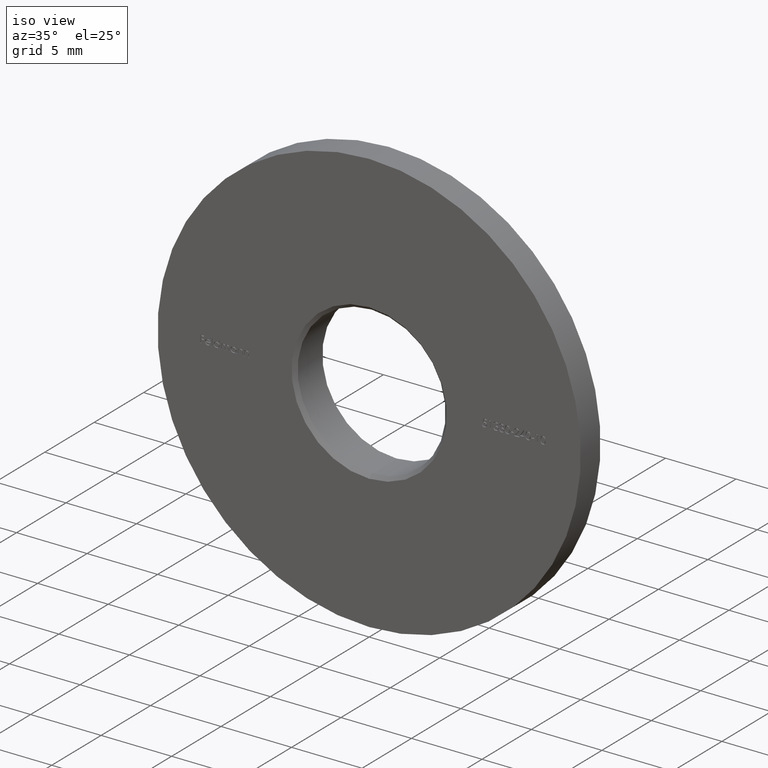
[diagram: clean part render]
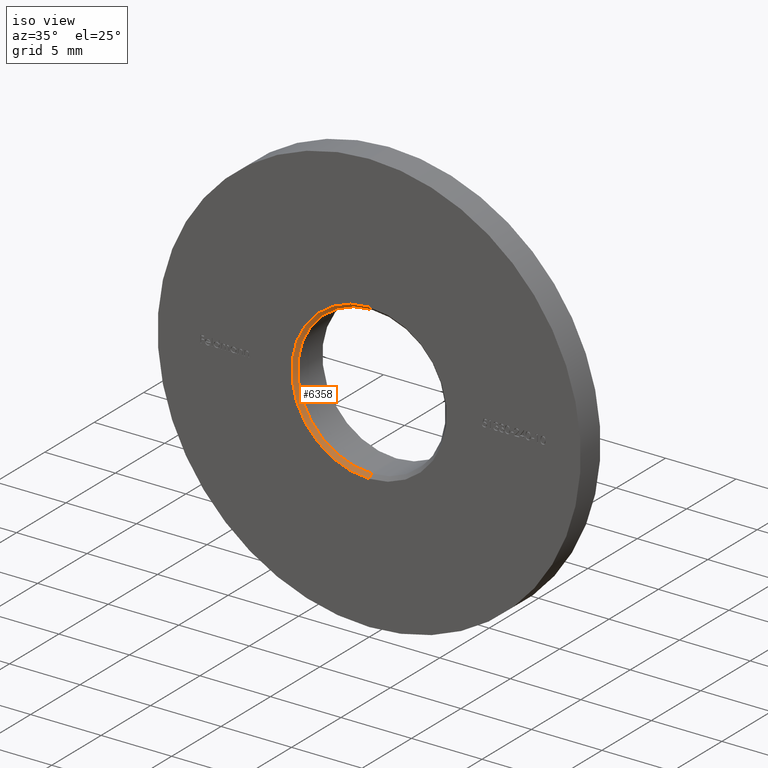
[diagram: same view with one face highlighted and labeled with its STEP entity id]
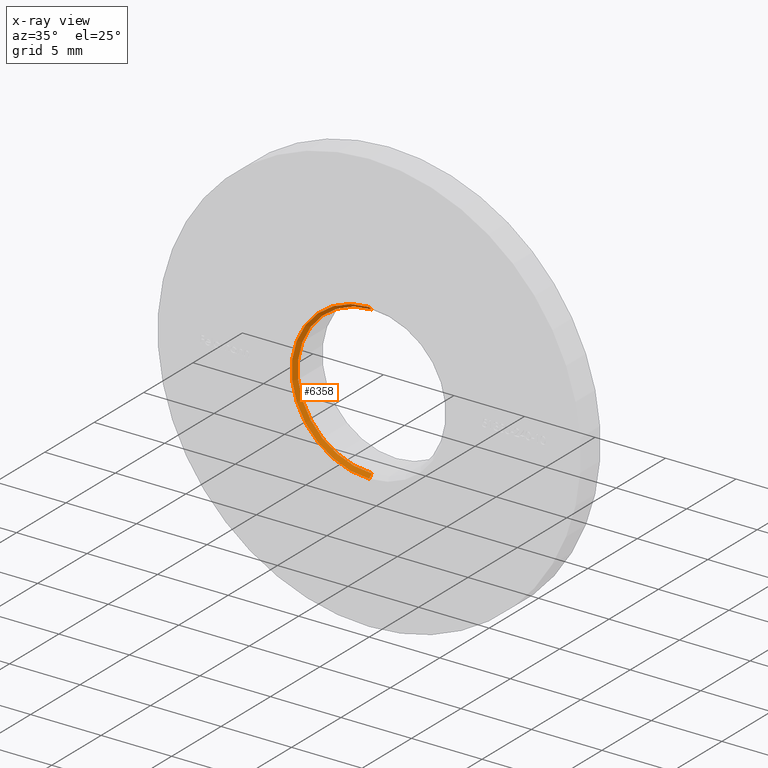
[diagram: x-ray of the same camera — body ghosted, the highlighted face saturated]
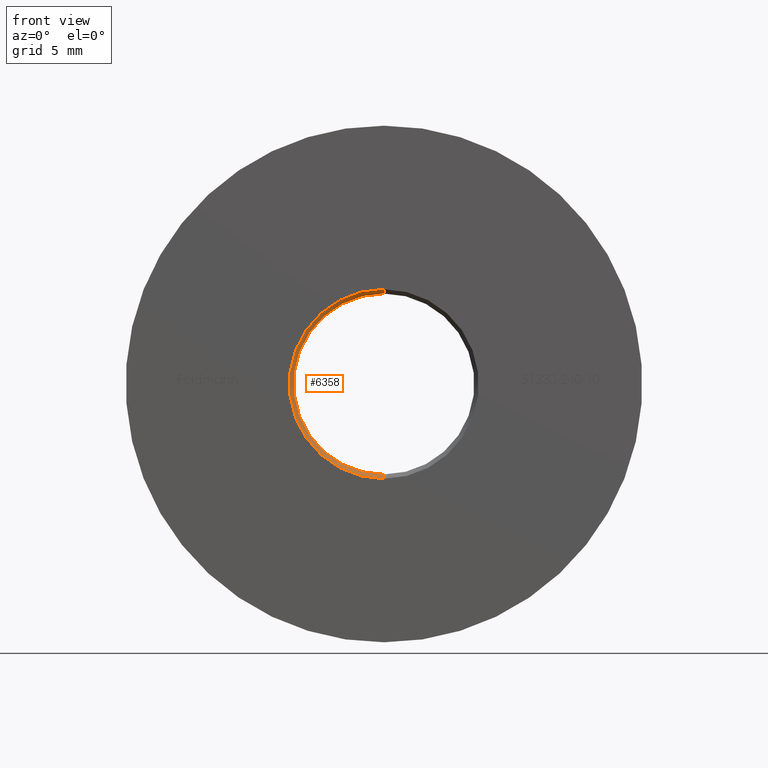
[diagram: same view with one face highlighted and labeled with its STEP entity id]
A machine part, iso view. The second image highlights one B-rep face of the part: STEP entity #6358.
The next image is the same camera in x-ray: the body ghosted, the highlighted face saturated — about 0% of this face is hidden behind the body in this view.
A second angle (front view) of the same face is appended — the face is thin or edge-on in the first view.
In plain terms, the highlighted conical surface has half-angle 45 deg.
Its self-contained STEP definition (entity closure, byte-faithful):
#26 = DIRECTION ( 'NONE',  ( 0.000000000000000000, 0.000000000000000000, 1.000000000000000000 ) ) ;
#1153 = VERTEX_POINT ( 'NONE', #13921 ) ;
#1467 = ORIENTED_EDGE ( 'NONE', *, *, #7720, .F. ) ;
#1976 = ORIENTED_EDGE ( 'NONE', *, *, #13122, .F. ) ;
#2185 = CARTESIAN_POINT ( 'NONE',  ( 6.429395695523604153E-16, 0.2500000000000028311, 5.250000000000000000 ) ) ;
#2564 = CONICAL_SURFACE ( 'NONE', #11458, 5.499999999999998224, 0.7853981633974378429 ) ;
#3260 = CARTESIAN_POINT ( 'NONE',  ( 0.000000000000000000, 0.2500000000000028311, -5.250000000000000000 ) ) ;
#3523 = EDGE_LOOP ( 'NONE', ( #1976, #11942, #9752, #1467 ) ) ;
#3609 = CIRCLE ( 'NONE', #9221, 5.499999999999998224 ) ;
#5795 = EDGE_CURVE ( 'NONE', #13131, #1153, #12880, .T. ) ;
#5847 = CARTESIAN_POINT ( 'NONE',  ( 0.000000000000000000, 0.000000000000000000, 0.000000000000000000 ) ) ;
#6129 = VECTOR ( 'NONE', #9441, 1000.000000000000000 ) ;
#6275 = CIRCLE ( 'NONE', #7596, 5.250000000000000000 ) ;
#6358 = ADVANCED_FACE ( 'NONE', ( #8486 ), #2564, .F. ) ;
#6865 = VECTOR ( 'NONE', #13825, 1000.000000000000000 ) ;
#7596 = AXIS2_PLACEMENT_3D ( 'NONE', #11353, #12336, #13640 ) ;
#7720 = EDGE_CURVE ( 'NONE', #14365, #12461, #9880, .T. ) ;
#8486 = FACE_OUTER_BOUND ( 'NONE', #3523, .T. ) ;
#9221 = AXIS2_PLACEMENT_3D ( 'NONE', #5847, #13803, #26 ) ;
#9273 = CARTESIAN_POINT ( 'NONE',  ( 0.000000000000000000, 0.000000000000000000, -5.499999999999998224 ) ) ;
#9441 = DIRECTION ( 'NONE',  ( 8.659560562354842879E-17, -0.7071067811865549002, 0.7071067811865401342 ) ) ;
#9683 = CARTESIAN_POINT ( 'NONE',  ( 0.000000000000000000, 0.000000000000000000, -5.499999999999998224 ) ) ;
#9752 = ORIENTED_EDGE ( 'NONE', *, *, #12725, .F. ) ;
#9880 = LINE ( 'NONE', #9273, #6865 ) ;
#10203 = DIRECTION ( 'NONE',  ( -0.000000000000000000, -1.000000000000000000, -0.000000000000000000 ) ) ;
#10625 = CARTESIAN_POINT ( 'NONE',  ( 6.735557395310440051E-16, 0.000000000000000000, 5.499999999999998224 ) ) ;
#11353 = CARTESIAN_POINT ( 'NONE',  ( 0.000000000000000000, 0.2500000000000028311, 0.000000000000000000 ) ) ;
#11389 = DIRECTION ( 'NONE',  ( 0.000000000000000000, 0.000000000000000000, -1.000000000000000000 ) ) ;
#11458 = AXIS2_PLACEMENT_3D ( 'NONE', #13482, #10203, #11389 ) ;
#11942 = ORIENTED_EDGE ( 'NONE', *, *, #5795, .T. ) ;
#12336 = DIRECTION ( 'NONE',  ( -0.000000000000000000, -1.000000000000000000, -0.000000000000000000 ) ) ;
#12461 = VERTEX_POINT ( 'NONE', #9683 ) ;
#12725 = EDGE_CURVE ( 'NONE', #12461, #1153, #3609, .T. ) ;
#12880 = LINE ( 'NONE', #10625, #6129 ) ;
#13122 = EDGE_CURVE ( 'NONE', #13131, #14365, #6275, .T. ) ;
#13131 = VERTEX_POINT ( 'NONE', #2185 ) ;
#13482 = CARTESIAN_POINT ( 'NONE',  ( 0.000000000000000000, 0.000000000000000000, 0.000000000000000000 ) ) ;
#13640 = DIRECTION ( 'NONE',  ( 0.000000000000000000, 0.000000000000000000, 1.000000000000000000 ) ) ;
#13803 = DIRECTION ( 'NONE',  ( 0.000000000000000000, 1.000000000000000000, 0.000000000000000000 ) ) ;
#13825 = DIRECTION ( 'NONE',  ( 0.000000000000000000, -0.7071067811865549002, -0.7071067811865401342 ) ) ;
#13921 = CARTESIAN_POINT ( 'NONE',  ( 6.735557395310440051E-16, 0.000000000000000000, 5.499999999999998224 ) ) ;
#14365 = VERTEX_POINT ( 'NONE', #3260 ) ;